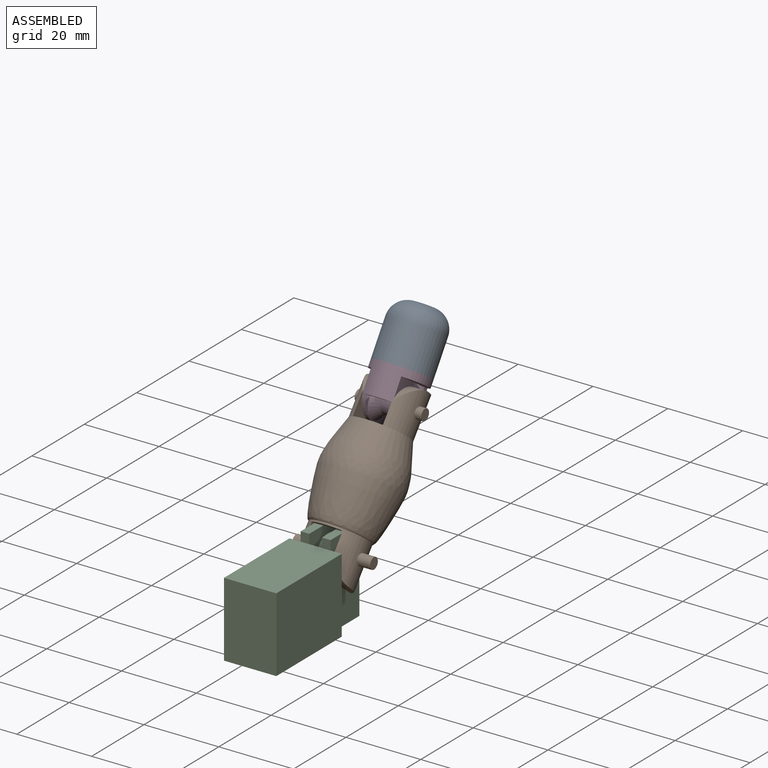
[diagram: assembled view]
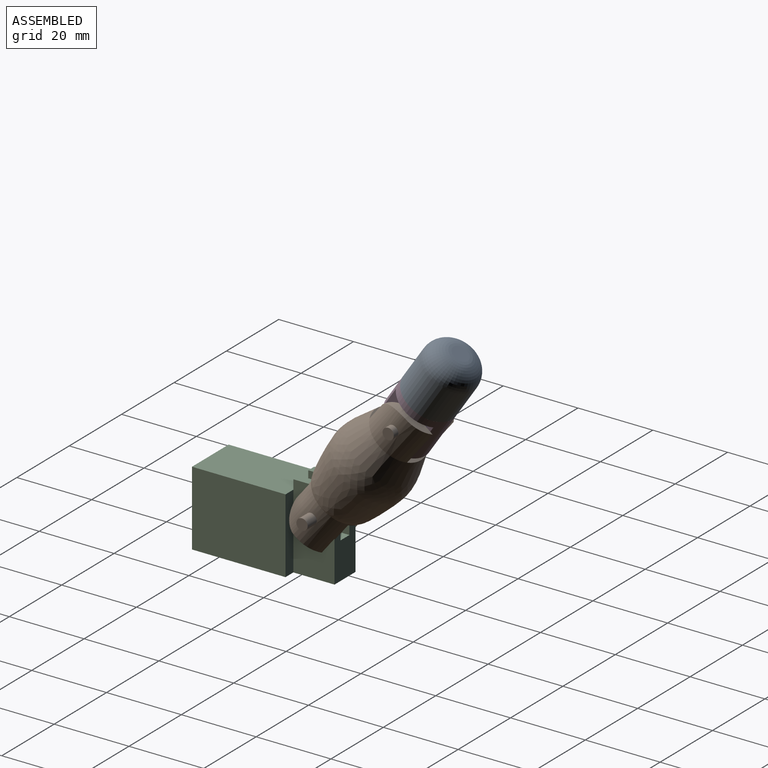
[diagram: assembled view, second angle]
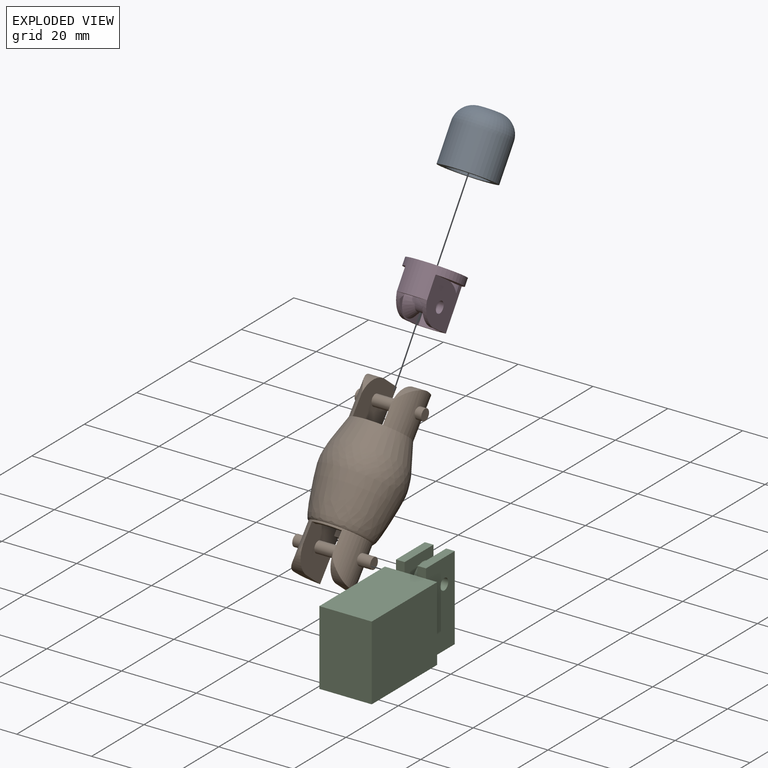
[diagram: exploded view]
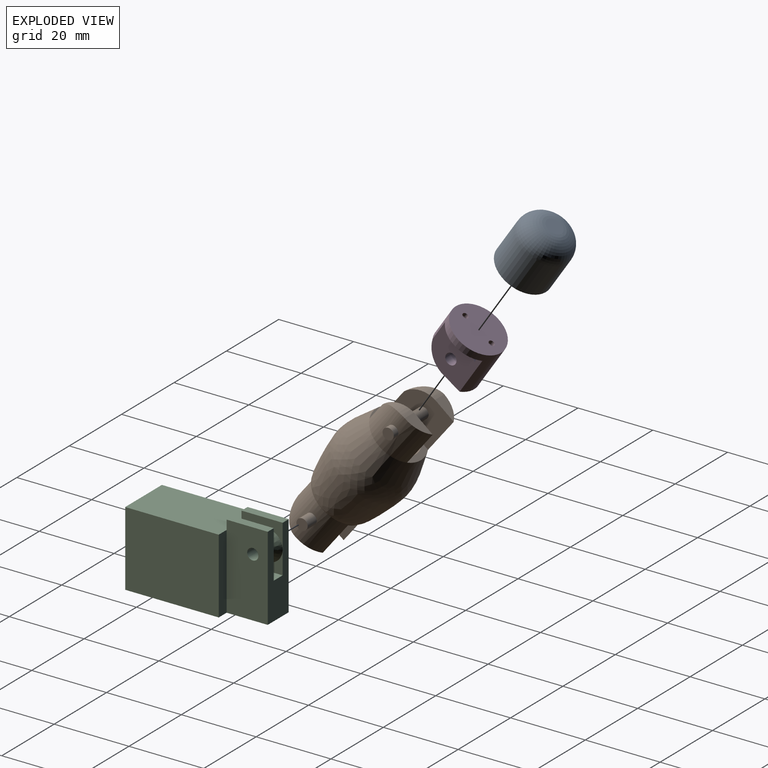
[diagram: exploded view, second angle]
ASSEMBLY  parts=4 mates=3
PART A: 7 faces, bbox 14.5x15x14.5 mm
  f0: cylinder r=7.25mm len=14.5mm, axis (0,-1,0), area 455.5mm2, adj f2,f3
  f1: plane 4.5x4.5mm, normal (0,1,0), area 15.9mm2, adj f3
  f2: plane 14.5x14.5mm, normal (0,-1,0), area 78.5mm2, adj f0,f4
  f3: torus R=2.25mm, axis (0,1,0), area 268.1mm2, adj f0,f1
  f4: cylinder r=5.25mm len=10.5mm, axis (0,-1,0), area 329.9mm2, adj f2,f6
  f5: plane 4.5x4.5mm, normal (0,-1,0), area 15.9mm2, adj f6
  f6: torus R=2.25mm, axis (0,1,0), area 123.2mm2, adj f4,f5
PART B: 31 faces, bbox 22x46.8x22 mm
  f0: plane 46.8x12.91mm, normal (-1,0,0), area 470.2mm2, adj f2,f6,f7,f9,f10,f11,f14,f15
  f1: cylinder r=7.56mm len=12.77mm, axis (0,-1,0), area 147.5mm2, adj f3,f8,f13,f19,f29
  f2: cylinder r=7.56mm len=12.83mm, axis (0,-1,0), area 148.5mm2, adj f0,f13,f15,f20,f28
  f3: plane 12.77x11mm, normal (1,0,0), area 123.8mm2, adj f1,f8,f16,f19,f26
  f4: plane 35.8x12.69mm, normal (1,0,0), area 345.9mm2, adj f5,f6,f9,f10,f11,f14,f16,f18
  f5: plane 6.94x3.5mm, normal (0,-1,0), area 17.7mm2, adj f4,f6,f18
  f6: cylinder r=7.5mm len=15mm, axis (0,-1,0), area 314.1mm2, adj f0,f4,f5,f7,f10,f11,f12,f17
  f7: plane 6.94x3.5mm, normal (0,-1,0), area 17.7mm2, adj f0,f6,f17
  f8: plane 6.38x3.51mm, normal (0,1,0), area 15.8mm2, adj f1,f3,f19
  f9: cylinder r=6mm len=25mm, axis (0,-1,0), area 218.9mm2, adj f0,f4,f10,f16
  f10: plane 8x3.03mm, normal (0,-1,0), area 12.9mm2, adj f0,f4,f6,f9
  f11: plane 8x3.03mm, normal (0,-1,0), area 12.9mm2, adj f0,f4,f6,f14
  f12: bspline ~20.04x20.04mm, area 564.8mm2, adj f6,f13
  f13: bspline ~22.01x22mm, area 919.6mm2, adj f1,f2,f12,f16
  f14: cylinder r=6mm len=25mm, axis (0,-1,0), area 218.9mm2, adj f0,f4,f11,f16
  f15: plane 6.42x3.56mm, normal (0,1,0), area 16.1mm2, adj f0,f2,f20
  f16: plane 15.12x8.05mm, normal (0,1,0), area 27.4mm2, adj f0,f3,f4,f9,f13,f14
  f17: cylinder r=6.08mm len=5.75mm, axis (1,0,0), area 14.9mm2, adj f0,f6,f7
  f18: cylinder r=6.08mm len=5.75mm, axis (1,0,0), area 14.9mm2, adj f4,f5,f6
  f19: cylinder r=7.2mm len=6.38mm, axis (-1,0,0), area 15.6mm2, adj f1,f3,f8
  f20: cylinder r=7.2mm len=6.42mm, axis (-1,0,0), area 16.1mm2, adj f0,f2,f15
  f21: plane 3x3mm, normal (-1,0,0), area 7.1mm2, adj f22
  f22: cylinder r=1.5mm len=3mm, axis (-1,0,0), area 23.3mm2, adj f6,f21
  f23: cylinder r=1.5mm len=8mm, axis (-1,0,0), area 75.4mm2, adj f0,f4
  f24: cylinder r=1.5mm len=3.55mm, axis (-1,0,0), area 32.8mm2, adj f6,f25
  f25: plane 3x3mm, normal (1,0,0), area 7.1mm2, adj f24
  f26: cylinder r=1.5mm len=8.05mm, axis (-1,0,0), area 75.9mm2, adj f0,f3
  f27: plane 3x3mm, normal (1,0,0), area 7.1mm2, adj f28
  f28: cylinder r=1.5mm len=3mm, axis (-1,0,0), area 16.6mm2, adj f2,f27
  f29: cylinder r=1.5mm len=3mm, axis (-1,0,0), area 10mm2, adj f1,f30
  f30: plane 3x3mm, normal (-1,0,0), area 7.1mm2, adj f29
PART C: 22 faces, bbox 14x36x22.5 mm
  f0: plane 2.5x2.3mm, normal (0,-1,0), area 5.7mm2, adj f3,f4,f5,f13
  f1: plane 2.5x2.3mm, normal (0,-1,0), area 5.7mm2, adj f8,f9,f10,f13
  f2: plane 11x3.4mm, normal (0,0,1), area 37.4mm2, adj f3,f7,f8,f12
  f3: plane 12.7x11mm, normal (1,0,0), area 89.4mm2, adj f0,f2,f4,f7,f12,f20
  f4: plane 11x2.3mm, normal (0,0,1), area 25.3mm2, adj f0,f3,f5,f7
  f5: plane 22.5x11mm, normal (-1,0,0), area 240.4mm2, adj f0,f4,f6,f7,f17,f18
  f6: plane 36x14mm, normal (0,0,-1), area 438mm2, adj f5,f7,f10,f11,f14,f15,f16,f17
  f7: plane 22.5x8mm, normal (0,1,0), area 136.8mm2, adj f2,f3,f4,f5,f6,f8,f9,f10
  f8: plane 12.7x11mm, normal (-1,0,0), area 89.4mm2, adj f1,f2,f7,f9,f12,f21
  f9: plane 11x2.3mm, normal (0,0,1), area 25.3mm2, adj f1,f7,f8,f10
  f10: plane 22.5x11mm, normal (1,0,0), area 240.4mm2, adj f1,f6,f7,f9,f11,f18
  f11: plane 20x3mm, normal (0,1,0), area 60mm2, adj f6,f10,f13,f15
  f12: plane 10.2x3.4mm, normal (0,1,0), area 34.7mm2, adj f2,f3,f8,f13
  f13: plane 25x14mm, normal (0,0,1), area 350mm2, adj f0,f1,f11,f12,f14,f15,f16,f17
  f14: plane 25x20mm, normal (-1,0,0), area 500mm2, adj f6,f13,f16,f17
  f15: plane 25x20mm, normal (1,0,0), area 500mm2, adj f6,f11,f13,f16
  f16: plane 20x14mm, normal (0,-1,0), area 280mm2, adj f6,f13,f14,f15
  f17: plane 20x3mm, normal (0,1,0), area 60mm2, adj f5,f6,f13,f14
  f18: cylinder r=1.5mm len=8mm, axis (1,0,0), area 75.4mm2, adj f5,f10
  f19: cylinder r=2.5mm len=5mm, axis (1,0,0), area 6.3mm2, adj f20,f21
  f20: cone r=2.5mm half-angle=45deg, axis (-1,0,0), area 43.3mm2, adj f3,f19
  f21: cone r=2.5mm half-angle=45deg, axis (1,0,0), area 43.3mm2, adj f8,f19
PART D: 28 faces, bbox 14.5x12.9x14.5 mm
  f0: plane 1x0.13mm, normal (0,0,1), area 0.1mm2, adj f1,f3,f4,f5
  f1: plane 6.03x3.25mm, normal (0,-1,0), area 6.3mm2, adj f0,f2,f3,f5
  f2: plane 12.09x11.03mm, normal (1,0,0), area 112.9mm2, adj f1,f3,f4,f5,f9,f14,f15,f16
  f3: cylinder r=7.25mm len=14.5mm, axis (0,-1,0), area 234mm2, adj f0,f1,f2,f4,f8,f9,f12,f18
  f4: plane 6.07x3.25mm, normal (0,-1,0), area 6.3mm2, adj f0,f2,f3,f5
  f5: cylinder r=6.25mm len=12.5mm, axis (0,-1,0), area 140.2mm2, adj f0,f1,f2,f4,f6,f7,f8,f9
  f6: plane 12.5x9.88mm, normal (0,-1,0), area 99mm2, adj f5,f21,f22,f27
  f7: cylinder r=8.2mm len=5.38mm, axis (-1,0,0), area 5.6mm2, adj f5,f8,f10,f13,f26
  f8: plane 12.03x10.91mm, normal (-1,0,0), area 112.2mm2, adj f3,f5,f7,f9,f17,f20,f26
  f9: plane 8.05x7.25mm, normal (0,-1,0), area 18.9mm2, adj f2,f3,f5,f8,f10,f11,f16,f17
  f10: plane 10.91x10.9mm, normal (1,0,0), area 48.4mm2, adj f5,f7,f9,f13,f17,f24
  f11: plane 10.97x10.9mm, normal (-1,0,0), area 48.9mm2, adj f5,f9,f14,f15,f16,f25
  f12: plane 14.5x14.5mm, normal (0,1,0), area 161.6mm2, adj f3,f21,f22
  f13: plane 5.53x0.43mm, normal (0,1,0), area 1.9mm2, adj f5,f7,f10,f27
  f14: plane 5.56x1mm, normal (0,1,0), area 5.2mm2, adj f2,f5,f11,f15
  f15: cylinder r=8.2mm len=5.41mm, axis (-1,0,0), area 5.7mm2, adj f2,f5,f11,f14
  f16: cylinder r=7mm len=6.01mm, axis (-1,0,0), area 9.2mm2, adj f2,f5,f9,f11,f18
  f17: cylinder r=7mm len=6.01mm, axis (-1,0,0), area 9.2mm2, adj f5,f8,f9,f10,f19
  f18: plane 2.3x1.04mm, normal (0,-1,0), area 1.4mm2, adj f2,f3,f16,f19
  f19: plane 5.77x1.25mm, normal (0,-1,0), area 4.9mm2, adj f3,f5,f17,f18
  f20: cylinder r=1.5mm len=8.05mm, axis (-1,0,0), area 75.9mm2, adj f2,f8
  f21: cylinder r=0.75mm len=1.5mm, axis (0,1,0), area 4.7mm2, adj f6,f12
  f22: cylinder r=0.75mm len=1.5mm, axis (0,1,0), area 4.7mm2, adj f6,f12
  f23: cylinder r=2.35mm len=4.7mm, axis (-1,0,0), area 30.3mm2, adj f24,f25
  f24: cone r=2.35mm half-angle=45deg, axis (-1,0,0), area 59.6mm2, adj f10,f23
  f25: cone r=4.35mm half-angle=45deg, axis (1,0,0), area 59.6mm2, adj f11,f23
  f26: plane 12.04x3.77mm, normal (0,-1,0), area 29.5mm2, adj f3,f5,f7,f8,f27
  f27: plane 10.38x1mm, normal (1,0,0.03), area 10.3mm2, adj f5,f6,f13,f26
PLACE A rot(axis=(0,0.88,0.47),180deg) t=(43.88,-21.81,45.22)mm
PLACE B rot(axis=(1,0,0),51.3deg) t=(43.94,1.63,28.02)mm
PLACE C t=(44.14,-9.36,18.89)mm fixed
PLACE D rot(axis=(0,0.88,0.47),180deg) t=(43.88,-21.81,45.22)mm
MATE revolute B.f22 <-> C.f18  axis (-1,0,0) through (43.94,-13.36,34.89)mm
MATE fastened D.f3 <-> A.f0  axis (0,0.56,0.83) through (43.88,13.04,68.8)mm
MATE revolute D.f20 <-> B.f26  axis (1,0,0) through (43.91,8.52,61.99)mm
